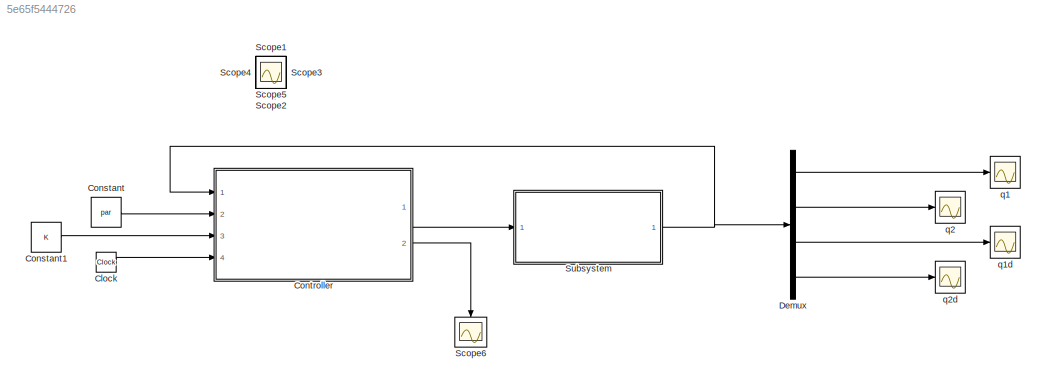
MODEL slx_5e65f5444726
KIND model
CONFIG AbsTol = auto
CONFIG EnableMultiTasking = off
CONFIG FixedStep = auto
CONFIG MaxStep = auto
CONFIG MinStep = auto
CONFIG RelTol = 1e-3
CONFIG SampleTimeConstraint = Unconstrained
CONFIG Solver = VariableStepAuto
CONFIG SolverName = VariableStepAuto
CONFIG StartTime = 0.0
CONFIG StopTime = 25
BLOCK [Clock] Clock
BLOCK [Constant] Constant
  Value = par
BLOCK [Constant] Constant1
  Value = K
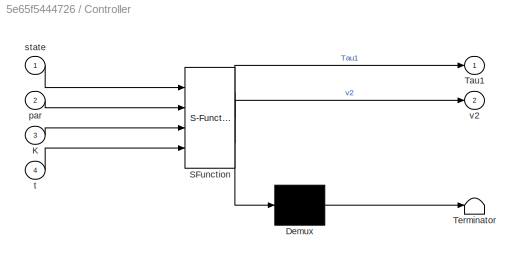
BLOCK [SubSystem] Controller
  ErrorFcn = Stateflow.Translate.translate
  PermitHierarchicalResolution = ExplicitOnly
  Ports = [4, 2]
  RequestExecContextInheritance = off
  SFBlockType = MATLAB Function
  TreatAsAtomicUnit = on
BLOCK [Demux] Controller/ Demux 
  Outputs = 1
  Ports = [1, 1]
BLOCK [S-Function] Controller/ SFunction 
  EnableBusSupport = on
  FunctionName = sf_sfun
  PortCounts = [4 3]
  Ports = [4, 3]
  SFcnIsStateOwnerBlock = off
  SFunctionDeploymentMode = off
  Tag = Stateflow S-Function pendu_partial_feed 1
BLOCK [Terminator] Controller/ Terminator 
BLOCK [Inport] Controller/K
  IconDisplay = Port number
  Port = 3
BLOCK [Outport] Controller/Tau1
  IconDisplay = Port number
BLOCK [Inport] Controller/par
  IconDisplay = Port number
  Port = 2
BLOCK [Inport] Controller/state
  IconDisplay = Port number
BLOCK [Inport] Controller/t
  IconDisplay = Port number
  Port = 4
BLOCK [Outport] Controller/v2
  IconDisplay = Port number
  Port = 2
BLOCK [Demux] Demux
  DisplayOption = bar
  Ports = [1, 4]
BLOCK [Scope] Scope
  Floating = off
  IOType = viewer
  NumInputPorts = 1
  Ports = []
  ScopeSpecificationString = Simulink.scopes.TimeScopeBlockCfg('CurrentConfiguration', extmgr.ConfigurationSet(extmgr.Configuration('Core','General UI',true),extmgr.Configuration('Core','Source UI',true),extmgr.Configuration('Sources','WiredSimulink',true),extmgr.Configuration('Visuals','Time Domain',true,'SerializedDisplays',{struct('MinYLimReal','-1.91292','MaxYLimReal','1.43848','YLabelReal','','MinYLimMag','0.00000','MaxY...<+1373ch>
BLOCK [Scope] Scope1
  Floating = off
  IOType = viewer
  NumInputPorts = 1
  Ports = []
  ScopeSpecificationString = Simulink.scopes.TimeScopeBlockCfg('CurrentConfiguration', extmgr.ConfigurationSet(extmgr.Configuration('Core','General UI',true),extmgr.Configuration('Core','Source UI',true),extmgr.Configuration('Sources','WiredSimulink',true,'DataLoggingVariableName','ScopeData1'),extmgr.Configuration('Visuals','Time Domain',true,'SerializedDisplays',{struct('MinYLimReal','0.00437','MaxYLimReal','0.08968','YLabe...<+1376ch>
BLOCK [Scope] Scope2
  Floating = off
  IOType = viewer
  NumInputPorts = 1
  Ports = []
  ScopeSpecificationString = Simulink.scopes.TimeScopeBlockCfg('CurrentConfiguration', extmgr.ConfigurationSet(extmgr.Configuration('Core','General UI',true),extmgr.Configuration('Core','Source UI',true),extmgr.Configuration('Sources','WiredSimulink',true,'DataLoggingVariableName','ScopeData1'),extmgr.Configuration('Visuals','Time Domain',true,'SerializedDisplays',{struct('MinYLimReal','-1.91292','MaxYLimReal','1.43848','YLab...<+1418ch>
BLOCK [Scope] Scope3
  Floating = off
  IOType = viewer
  NumInputPorts = 1
  Ports = []
  ScopeSpecificationString = Simulink.scopes.TimeScopeBlockCfg('CurrentConfiguration', extmgr.ConfigurationSet(extmgr.Configuration('Core','General UI',true),extmgr.Configuration('Core','Source UI',true),extmgr.Configuration('Sources','WiredSimulink',true,'DataLoggingVariableName','ScopeData1'),extmgr.Configuration('Visuals','Time Domain',true,'SerializedDisplays',{struct('MinYLimReal','-4.59472','MaxYLimReal','7.191','YLabel...<+1440ch>
BLOCK [Scope] Scope4
  Floating = off
  IOType = viewer
  NumInputPorts = 1
  Ports = []
  ScopeSpecificationString = Simulink.scopes.TimeScopeBlockCfg('CurrentConfiguration', extmgr.ConfigurationSet(extmgr.Configuration('Core','General UI',true),extmgr.Configuration('Core','Source UI',true),extmgr.Configuration('Sources','WiredSimulink',true,'DataLoggingVariableName','ScopeData2'),extmgr.Configuration('Visuals','Time Domain',true,'SerializedDisplays',{struct('MinYLimReal','-2.01443','MaxYLimReal','8.7258','YLabe...<+1396ch>
BLOCK [Scope] Scope5
  Floating = off
  IOType = viewer
  NumInputPorts = 1
  Ports = []
  ScopeSpecificationString = Simulink.scopes.TimeScopeBlockCfg('CurrentConfiguration', extmgr.ConfigurationSet(extmgr.Configuration('Core','General UI',true),extmgr.Configuration('Core','Source UI',true),extmgr.Configuration('Sources','WiredSimulink',true,'DataLoggingVariableName','ScopeData3'),extmgr.Configuration('Visuals','Time Domain',true,'SerializedDisplays',{struct('MinYLimReal','-3.64936','MaxYLimReal','3.53267','YLab...<+1432ch>
BLOCK [Scope] Scope6
  Floating = off
  NumInputPorts = 1
  Ports = [1]
  ScopeSpecificationString = Simulink.scopes.TimeScopeBlockCfg('CurrentConfiguration', extmgr.ConfigurationSet(extmgr.Configuration('Core','General UI',true),extmgr.Configuration('Core','Source UI',true),extmgr.Configuration('Sources','WiredSimulink',true,'DataLoggingVariableName','ScopeData4'),extmgr.Configuration('Visuals','Time Domain',true,'SerializedDisplays',{struct('MinYLimReal','-3.64936','MaxYLimReal','3.53267','YLab...<+1400ch>
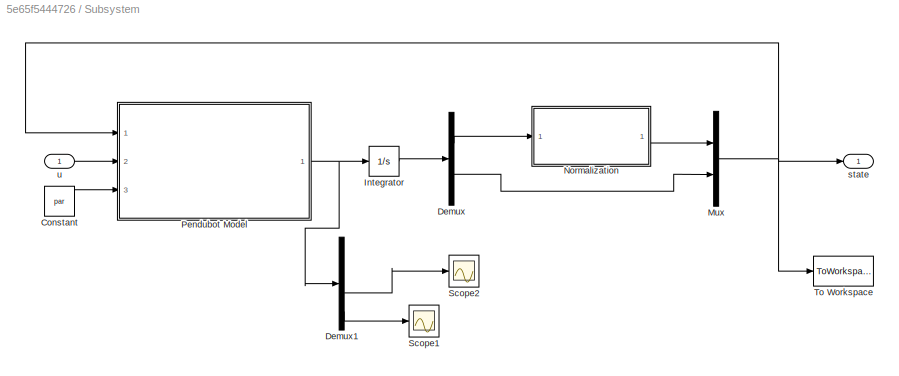
BLOCK [SubSystem] Subsystem
  Ports = [1, 1]
  RequestExecContextInheritance = off
BLOCK [Constant] Subsystem/Constant
  Value = par
BLOCK [Demux] Subsystem/Demux
  DisplayOption = bar
  Outputs = [2 2]
  Ports = [1, 2]
BLOCK [Demux] Subsystem/Demux1
  DisplayOption = bar
  Ports = [1, 4]
BLOCK [Integrator] Subsystem/Integrator
  InitialCondition = q0
  Ports = [1, 1]
BLOCK [Mux] Subsystem/Mux
  DisplayOption = bar
  Inputs = [2 2]
  Ports = [2, 1]
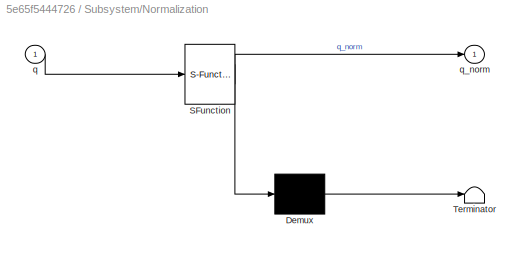
BLOCK [SubSystem] Subsystem/Normalization 
  ErrorFcn = Stateflow.Translate.translate
  PermitHierarchicalResolution = ExplicitOnly
  Ports = [1, 1]
  RequestExecContextInheritance = off
  SFBlockType = MATLAB Function
  TreatAsAtomicUnit = on
BLOCK [Demux] Subsystem/Normalization / Demux 
  Outputs = 1
  Ports = [1, 1]
BLOCK [S-Function] Subsystem/Normalization / SFunction 
  EnableBusSupport = on
  FunctionName = sf_sfun
  PortCounts = [1 2]
  Ports = [1, 2]
  SFcnIsStateOwnerBlock = off
  SFunctionDeploymentMode = off
  Tag = Stateflow S-Function pendu_partial_feed 3
BLOCK [Terminator] Subsystem/Normalization / Terminator 
BLOCK [Inport] Subsystem/Normalization /q
  IconDisplay = Port number
BLOCK [Outport] Subsystem/Normalization /q_norm
  IconDisplay = Port number
  VectorParamsAs1DForOutWhenUnconnected = on
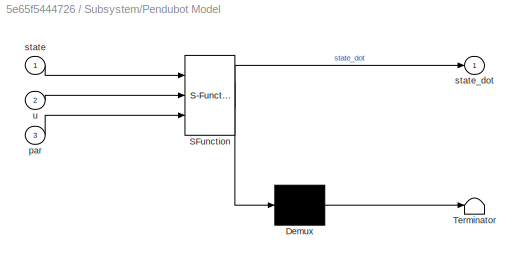
BLOCK [SubSystem] Subsystem/Pendubot Model
  ErrorFcn = Stateflow.Translate.translate
  PermitHierarchicalResolution = ExplicitOnly
  Ports = [3, 1]
  RequestExecContextInheritance = off
  SFBlockType = MATLAB Function
  TreatAsAtomicUnit = on
BLOCK [Demux] Subsystem/Pendubot Model/ Demux 
  Outputs = 1
  Ports = [1, 1]
BLOCK [S-Function] Subsystem/Pendubot Model/ SFunction 
  EnableBusSupport = on
  FunctionName = sf_sfun
  PortCounts = [3 2]
  Ports = [3, 2]
  SFcnIsStateOwnerBlock = off
  SFunctionDeploymentMode = off
  Tag = Stateflow S-Function pendu_partial_feed 2
BLOCK [Terminator] Subsystem/Pendubot Model/ Terminator 
BLOCK [Inport] Subsystem/Pendubot Model/par
  IconDisplay = Port number
  Port = 3
BLOCK [Inport] Subsystem/Pendubot Model/state
  IconDisplay = Port number
BLOCK [Outport] Subsystem/Pendubot Model/state_dot
  IconDisplay = Port number
BLOCK [Inport] Subsystem/Pendubot Model/u
  IconDisplay = Port number
  Port = 2
BLOCK [Scope] Subsystem/Scope1
  Floating = off
  NumInputPorts = 1
  Ports = [1]
  ScopeSpecificationString = Simulink.scopes.TimeScopeBlockCfg('CurrentConfiguration', extmgr.ConfigurationSet(extmgr.Configuration('Core','General UI',true),extmgr.Configuration('Core','Source UI',true),extmgr.Configuration('Sources','WiredSimulink',true,'DataLoggingVariableName','ScopeData5'),extmgr.Configuration('Visuals','Time Domain',true,'SerializedDisplays',{struct('MinYLimReal','-3.64936','MaxYLimReal','3.53267','YLab...<+1393ch>
BLOCK [Scope] Subsystem/Scope2
  Floating = off
  NumInputPorts = 1
  Ports = [1]
  ScopeSpecificationString = Simulink.scopes.TimeScopeBlockCfg('CurrentConfiguration', extmgr.ConfigurationSet(extmgr.Configuration('Core','General UI',true),extmgr.Configuration('Core','Source UI',true),extmgr.Configuration('Sources','WiredSimulink',true,'DataLoggingVariableName','ScopeData6'),extmgr.Configuration('Visuals','Time Domain',true,'SerializedDisplays',{struct('MinYLimReal','-1.32745','MaxYLimReal','0.49679','YLab...<+1437ch>
BLOCK [ToWorkspace] Subsystem/To Workspace
  FixptAsFi = on
  MaxDataPoints = inf
  Ports = [1]
  SampleTime = -1
  Save2DSignal = 3-D array (concatenate along third dimension)
  SaveFormat = Structure With Time
  VariableName = state
BLOCK [Outport] Subsystem/state
  IconDisplay = Port number
BLOCK [Inport] Subsystem/u 
  IconDisplay = Port number
BLOCK [Scope] q1 
  Floating = off
  NumInputPorts = 1
  Ports = [1]
  ScopeSpecificationString = Simulink.scopes.TimeScopeBlockCfg('CurrentConfiguration', extmgr.ConfigurationSet(extmgr.Configuration('Core','General UI',true),extmgr.Configuration('Core','Source UI',true),extmgr.Configuration('Sources','WiredSimulink',true,'DataLoggingVariableName','ScopeData1'),extmgr.Configuration('Visuals','Time Domain',true,'SerializedDisplays',{struct('MinYLimReal','-4.89234','MaxYLimReal','7.41463','YLab...<+1438ch>
BLOCK [Scope] q1d
  Floating = off
  NumInputPorts = 1
  Ports = [1]
  ScopeSpecificationString = Simulink.scopes.TimeScopeBlockCfg('CurrentConfiguration', extmgr.ConfigurationSet(extmgr.Configuration('Core','General UI',true),extmgr.Configuration('Core','Source UI',true),extmgr.Configuration('Sources','WiredSimulink',true,'DataLoggingVariableName','ScopeData2'),extmgr.Configuration('Visuals','Time Domain',true,'SerializedDisplays',{struct('MinYLimReal','-2.89507','MaxYLimReal','13.01347','YLa...<+1399ch>
BLOCK [Scope] q2
  Floating = off
  NumInputPorts = 1
  Ports = [1]
  ScopeSpecificationString = Simulink.scopes.TimeScopeBlockCfg('CurrentConfiguration', extmgr.ConfigurationSet(extmgr.Configuration('Core','General UI',true),extmgr.Configuration('Core','Source UI',true),extmgr.Configuration('Sources','WiredSimulink',true,'DataLoggingVariableName','ScopeData3'),extmgr.Configuration('Visuals','Time Domain',true,'SerializedDisplays',{struct('MinYLimReal','-4.51848','MaxYLimReal','2.12145','YLab...<+1436ch>
BLOCK [Scope] q2d
  Floating = off
  NumInputPorts = 1
  Ports = [1]
  ScopeSpecificationString = Simulink.scopes.TimeScopeBlockCfg('CurrentConfiguration', extmgr.ConfigurationSet(extmgr.Configuration('Core','General UI',true),extmgr.Configuration('Core','Source UI',true),extmgr.Configuration('Sources','WiredSimulink',true,'DataLoggingVariableName','ScopeData4'),extmgr.Configuration('Visuals','Time Domain',true,'SerializedDisplays',{struct('MinYLimReal','-26.8499','MaxYLimReal','4.99788','YLab...<+1411ch>
LINE Clock:1 -> Controller:4
LINE Constant1:1 -> Controller:3
LINE Constant:1 -> Controller:2
LINE Controller:1 -> Subsystem:1
LINE Controller:2 -> Scope6:1
LINE Demux:1 -> q1 :1
LINE Demux:2 -> q2:1
LINE Demux:3 -> q1d:1
LINE Demux:4 -> q2d:1
LINE Subsystem/Constant:1 -> Subsystem/Pendubot Model:3
LINE Subsystem/Demux1:3 -> Subsystem/Scope2:1
LINE Subsystem/Demux1:4 -> Subsystem/Scope1:1
LINE Subsystem/Demux:1 -> Subsystem/Normalization :1
LINE Subsystem/Demux:2 -> Subsystem/Mux:2
LINE Subsystem/Integrator:1 -> Subsystem/Demux:1
NET Subsystem/Mux:1 -> Subsystem/Pendubot Model:1, Subsystem/To Workspace:1, Subsystem/state:1
LINE Subsystem/Normalization :1 -> Subsystem/Mux:1
NET Subsystem/Pendubot Model:1 -> Subsystem/Demux1:1, Subsystem/Integrator:1
LINE Subsystem/u :1 -> Subsystem/Pendubot Model:2
NET Subsystem:1 -> Controller:1, Demux:1
note: NET lines group one-source signal fan-out (src -> all destinations, sorted); 1:1 wires keep LINE
CHART Controller states=1 transitions=1
  STATE_LABEL 'eML_blk_kernel()'
  STATE_LABEL 'SCRIPT:\nfunction [Tau1, v2] = controller(state,par,K,t)\n\n% Parameters of Acrobot\n\nm1 = par(1);\nm2 = par(2);\nl1 = par(3);\nl2 = par(4);\nlc1 = par(5);\nlc2 = par(6);\nI1 = par(7);\nI2 = par(8);\ng = par(9);\n\n% State \n\nq1 = state(1);\nq2 = state(2);\nqd1 = state(3);\nqd2 = state(4);\n\n% Dynamic Equations elements\n\nd11 = m1*lc1^2 + m2*(l1^2 + lc2^2 + 2*l1*lc2*cos(q2)) + I1 + I2;\nd12 = m2*(lc2^2 + l1*lc2*cos(q2...<+718ch>'
CHART Subsystem/Pendubot Model states=1 transitions=1
  STATE_LABEL 'eML_blk_kernel()'
  STATE_LABEL 'SCRIPT:\nfunction state_dot = pendubot(state, u, par)\n\n% Parameters of Acrobot\n\nm1 = par(1);\nm2 = par(2);\nl1 = par(3);\nl2 = par(4);\nlc1 = par(5);\nlc2 = par(6);\nI1 = par(7);\nI2 = par(8);\ng = par(9);\n\n% State \n\nq1 = state(1);\nq2 = state(2);\nqd1 = state(3);\nqd2 = state(4);\n\n% Inertia Matrix \n\nd11 = m1*lc1^2 + m2*(l1^2 + lc2^2+2*l1*lc2*cos(q2)) + I1 + I2;\nd12 = m2*(lc2^2 + l1*lc2*cos(q2)) + I2;\nd21 = d...<+512ch>'
CHART Subsystem/Normalization
 states=1 transitions=1
  STATE_LABEL 'eML_blk_kernel()'
  STATE_LABEL 'SCRIPT:\nfunction q_norm = norm(q)\n\nq1 = q(1);\nq2 = q(2);\n\n% Normalization of angles between 0 and 2pi, while maintaining the sign\n\nif q1 >= 0\n    q1 = mod(q1, 2*pi);    \nelse\n    q1 = mod(q1, -2*pi);\nend\n\nif q2 >= 0\n    q2 = mod(q2, 2*pi);\nelse\n    q2 = mod(q2, -2*pi);\nend\n\nq_norm = [q1, q2];\n'
